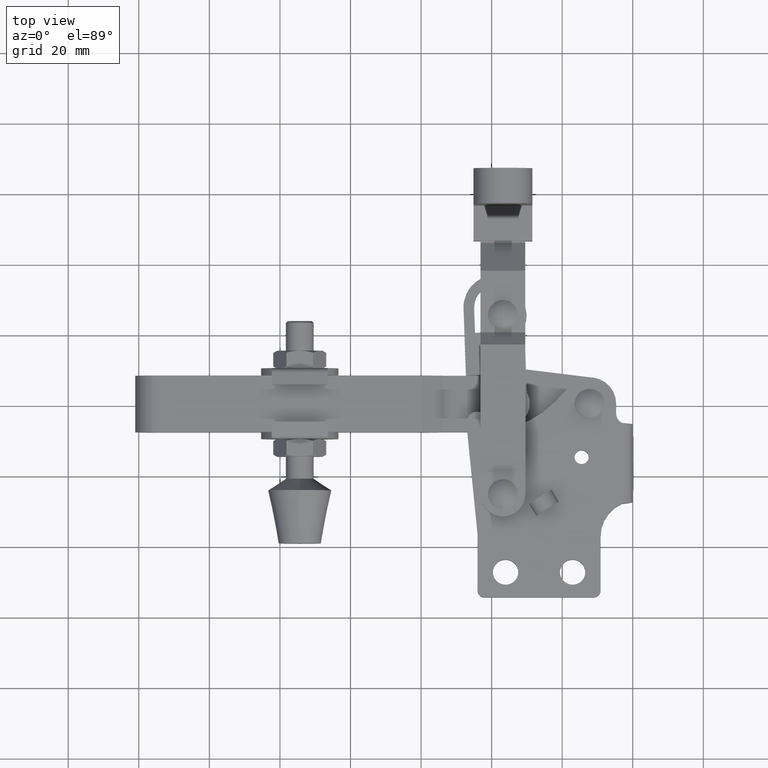
[diagram: clean part render]
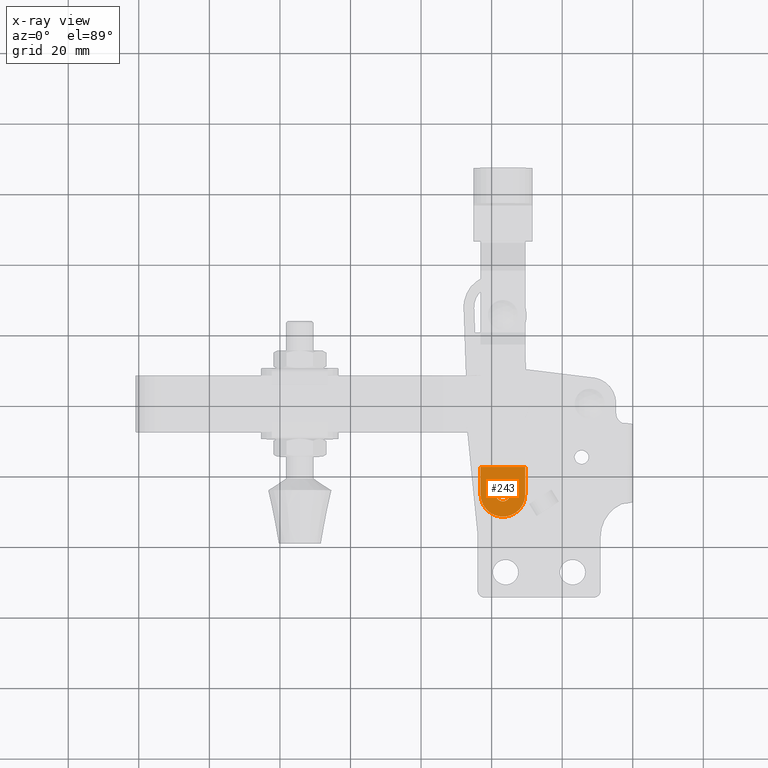
[diagram: x-ray — body ghosted, one internal face saturated and labeled with its STEP entity id]
A machine part, top view, then the same camera in x-ray: the body is ghosted and one INTERNAL B-rep face — a face not visible from any outside direction — is saturated and labeled: STEP entity #243.
In plain terms, the highlighted planar face has unit normal (0, 0, 1).
Its self-contained STEP definition (entity closure, byte-faithful):
#43 = DIRECTION ( 'NONE',  ( 1.000000000000000000, 0.0000000000000000000, 0.0000000000000000000 ) ) ;
#243 = ADVANCED_FACE ( 'NONE', ( #9403, #7265 ), #4637, .F. ) ;
#404 = CARTESIAN_POINT ( 'NONE',  ( -43.15000000000017600, -26.32467528299208600, 5.999999999999998200 ) ) ;
#1008 = ORIENTED_EDGE ( 'NONE', *, *, #3563, .T. ) ;
#1196 = DIRECTION ( 'NONE',  ( 1.658530013599391000E-018, 4.958268242579200900E-017, 1.000000000000000000 ) ) ;
#1527 = AXIS2_PLACEMENT_3D ( 'NONE', #10321, #4848, #11228 ) ;
#1893 = CARTESIAN_POINT ( 'NONE',  ( -30.45000000000017300, 21.85999999999986400, 5.999999999999998200 ) ) ;
#2044 = EDGE_CURVE ( 'NONE', #4915, #9888, #11254, .T. ) ;
#2230 = AXIS2_PLACEMENT_3D ( 'NONE', #6599, #1196, #7510 ) ;
#2309 = ORIENTED_EDGE ( 'NONE', *, *, #9799, .F. ) ;
#2791 = EDGE_CURVE ( 'NONE', #7529, #7960, #6060, .T. ) ;
#2851 = CIRCLE ( 'NONE', #7090, 6.350000000000022700 ) ;
#3563 = EDGE_CURVE ( 'NONE', #11452, #4434, #5013, .T. ) ;
#3589 = DIRECTION ( 'NONE',  ( 1.658530013599391000E-018, 1.915454074022922200E-020, 1.000000000000000000 ) ) ;
#3681 = VECTOR ( 'NONE', #6052, 1000.000000000000000 ) ;
#3998 = VECTOR ( 'NONE', #5797, 1000.000000000000000 ) ;
#4434 = VERTEX_POINT ( 'NONE', #11564 ) ;
#4498 = CARTESIAN_POINT ( 'NONE',  ( -30.45000000000017300, 21.85999999999986400, 5.999999999999998200 ) ) ;
#4611 = CARTESIAN_POINT ( 'NONE',  ( -43.15000000000017600, 21.85999999999986400, 5.999999999999998200 ) ) ;
#4637 = PLANE ( 'NONE',  #6012 ) ;
#4848 = DIRECTION ( 'NONE',  ( 1.658530013599391000E-018, 4.958268242579200900E-017, 1.000000000000000000 ) ) ;
#4915 = VERTEX_POINT ( 'NONE', #10863 ) ;
#5013 = CIRCLE ( 'NONE', #1527, 2.000000000000001800 ) ;
#5073 = EDGE_CURVE ( 'NONE', #4434, #11452, #11568, .T. ) ;
#5338 = VECTOR ( 'NONE', #10858, 1000.000000000000000 ) ;
#5447 = DIRECTION ( 'NONE',  ( 1.658530013599391000E-018, 1.915454074022922200E-020, 1.000000000000000000 ) ) ;
#5766 = EDGE_LOOP ( 'NONE', ( #9215, #8269, #2309, #9342 ) ) ;
#5797 = DIRECTION ( 'NONE',  ( 0.0000000000000000000, 1.000000000000000000, -1.915454074022858400E-020 ) ) ;
#6012 = AXIS2_PLACEMENT_3D ( 'NONE', #10888, #3589, #10051 ) ;
#6052 = DIRECTION ( 'NONE',  ( 0.0000000000000000000, 1.000000000000000000, -1.915454074022858400E-020 ) ) ;
#6060 = LINE ( 'NONE', #11527, #3681 ) ;
#6599 = CARTESIAN_POINT ( 'NONE',  ( -36.80000000000016800, 14.09999999999989100, 5.999999999999992000 ) ) ;
#6676 = EDGE_CURVE ( 'NONE', #4915, #7529, #2851, .T. ) ;
#6906 = EDGE_LOOP ( 'NONE', ( #1008, #9495 ) ) ;
#7002 = CARTESIAN_POINT ( 'NONE',  ( -30.45000000000013100, 14.09999999999989100, 5.999999999999998200 ) ) ;
#7090 = AXIS2_PLACEMENT_3D ( 'NONE', #10897, #5447, #43 ) ;
#7265 = FACE_BOUND ( 'NONE', #6906, .T. ) ;
#7510 = DIRECTION ( 'NONE',  ( 0.0000000000000000000, -1.000000000000000000, 0.0000000000000000000 ) ) ;
#7529 = VERTEX_POINT ( 'NONE', #7002 ) ;
#7603 = CARTESIAN_POINT ( 'NONE',  ( -38.80000000000016800, 14.09999999999989100, 5.999999999999992000 ) ) ;
#7774 = LINE ( 'NONE', #4498, #5338 ) ;
#7960 = VERTEX_POINT ( 'NONE', #1893 ) ;
#8269 = ORIENTED_EDGE ( 'NONE', *, *, #2044, .T. ) ;
#9215 = ORIENTED_EDGE ( 'NONE', *, *, #6676, .F. ) ;
#9342 = ORIENTED_EDGE ( 'NONE', *, *, #2791, .F. ) ;
#9403 = FACE_OUTER_BOUND ( 'NONE', #5766, .T. ) ;
#9495 = ORIENTED_EDGE ( 'NONE', *, *, #5073, .T. ) ;
#9799 = EDGE_CURVE ( 'NONE', #7960, #9888, #7774, .T. ) ;
#9888 = VERTEX_POINT ( 'NONE', #4611 ) ;
#10051 = DIRECTION ( 'NONE',  ( 1.000000000000000000, 0.0000000000000000000, -1.658530013599391000E-018 ) ) ;
#10321 = CARTESIAN_POINT ( 'NONE',  ( -36.80000000000016800, 14.09999999999989100, 5.999999999999992000 ) ) ;
#10858 = DIRECTION ( 'NONE',  ( -1.000000000000000000, 0.0000000000000000000, 1.658530013599391000E-018 ) ) ;
#10863 = CARTESIAN_POINT ( 'NONE',  ( -43.15000000000017600, 14.09999999999989100, 5.999999999999998200 ) ) ;
#10888 = CARTESIAN_POINT ( 'NONE',  ( -30.45000000000017300, -26.32467528299208600, 5.999999999999998200 ) ) ;
#10897 = CARTESIAN_POINT ( 'NONE',  ( -36.80000000000015300, 14.09999999999989100, 5.999999999999998200 ) ) ;
#11228 = DIRECTION ( 'NONE',  ( 0.0000000000000000000, -1.000000000000000000, 0.0000000000000000000 ) ) ;
#11254 = LINE ( 'NONE', #404, #3998 ) ;
#11452 = VERTEX_POINT ( 'NONE', #7603 ) ;
#11527 = CARTESIAN_POINT ( 'NONE',  ( -30.45000000000017300, -26.32467528299208600, 5.999999999999998200 ) ) ;
#11564 = CARTESIAN_POINT ( 'NONE',  ( -34.80000000000016800, 14.09999999999989100, 5.999999999999992000 ) ) ;
#11568 = CIRCLE ( 'NONE', #2230, 2.000000000000001800 ) ;